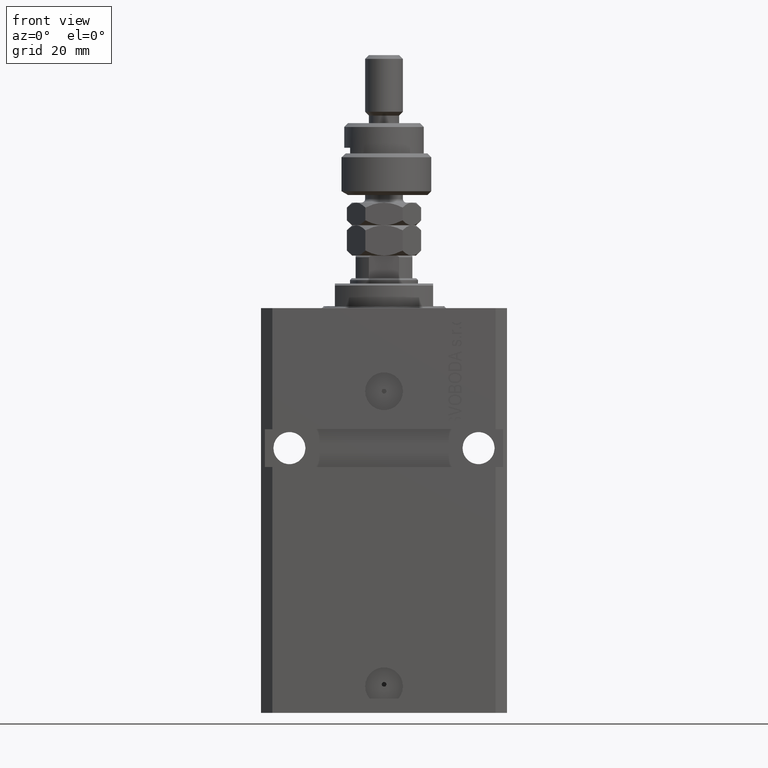
[diagram: clean part render]
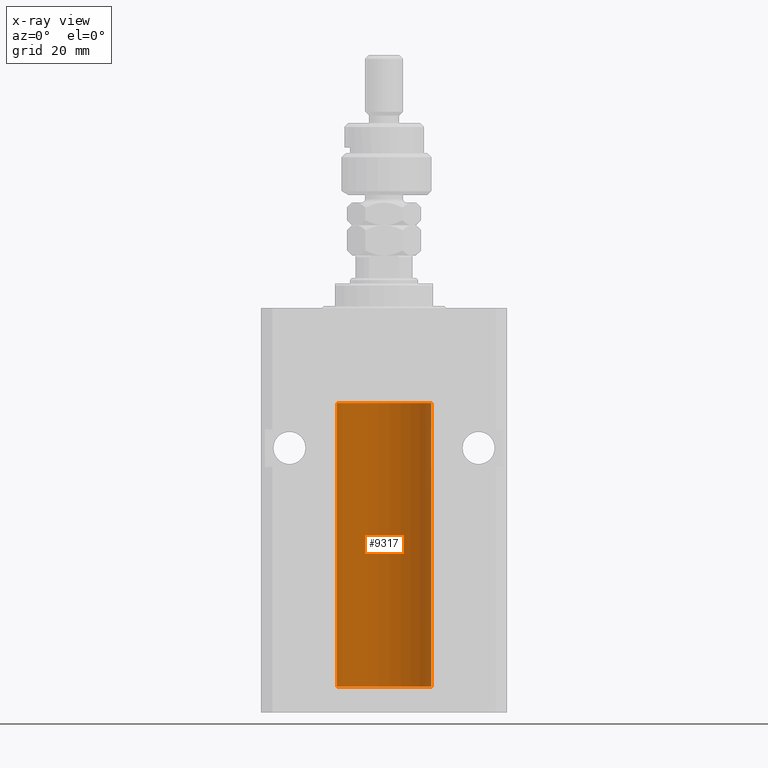
[diagram: x-ray — body ghosted, one internal face saturated and labeled with its STEP entity id]
A machine part, front view, then the same camera in x-ray: the body is ghosted and one INTERNAL B-rep face — a face not visible from any outside direction — is saturated and labeled: STEP entity #9317.
In plain terms, the highlighted cylindrical surface (partial cylindrical patch) has radius 12.5 mm, axis along (0, 0, 1).
Its self-contained STEP definition (entity closure, byte-faithful):
#134 = CARTESIAN_POINT ( 'NONE',  ( -12.50000000000000000, 1.530808498934191521E-15, -25.10000000000000142 ) ) ;
#529 = CARTESIAN_POINT ( 'NONE',  ( 0.000000000000000000, 0.000000000000000000, -100.0999999999999943 ) ) ;
#779 = CARTESIAN_POINT ( 'NONE',  ( -12.48809959379011403, 0.5462151254764922026, -95.31461370481613926 ) ) ;
#1040 = CARTESIAN_POINT ( 'NONE',  ( -12.49915784441387068, 0.1636601911727894876, -94.39126818989429069 ) ) ;
#1255 = DIRECTION ( 'NONE',  ( -0.000000000000000000, -0.000000000000000000, 1.000000000000000000 ) ) ;
#1285 = CARTESIAN_POINT ( 'NONE',  ( -12.50000000000000000, 0.08260426088727994276, -94.37499999999998579 ) ) ;
#1312 = FACE_OUTER_BOUND ( 'NONE', #39441, .T. ) ;
#2621 = EDGE_CURVE ( 'NONE', #24542, #5418, #37139, .T. ) ;
#3089 = CARTESIAN_POINT ( 'NONE',  ( 12.50000000000000000, 0.000000000000000000, -100.0999999999999943 ) ) ;
#4435 = EDGE_CURVE ( 'NONE', #40018, #12628, #37053, .T. ) ;
#4782 = EDGE_CURVE ( 'NONE', #37730, #7130, #20469, .T. ) ;
#4825 = CARTESIAN_POINT ( 'NONE',  ( -12.48436813453758631, 0.6249418250771134886, -94.83668996798924411 ) ) ;
#4858 = DIRECTION ( 'NONE',  ( -0.000000000000000000, -0.000000000000000000, 1.000000000000000000 ) ) ;
#5082 = CARTESIAN_POINT ( 'NONE',  ( -12.48810268015257741, 0.5573155909661239304, -94.67347410093871929 ) ) ;
#5418 = VERTEX_POINT ( 'NONE', #134 ) ;
#7130 = VERTEX_POINT ( 'NONE', #30245 ) ;
#8431 = CARTESIAN_POINT ( 'NONE',  ( -12.50000000000000000, 1.530808498934191521E-15, -100.0999999999999943 ) ) ;
#8609 = CARTESIAN_POINT ( 'NONE',  ( -12.50000000000017941, 3.883381774819353300E-13, -95.62500000000359535 ) ) ;
#9153 = DIRECTION ( 'NONE',  ( 1.000000000000000000, 0.000000000000000000, 0.000000000000000000 ) ) ;
#9317 = ADVANCED_FACE ( 'NONE', ( #1312 ), #47535, .F. ) ;
#10835 = ORIENTED_EDGE ( 'NONE', *, *, #4782, .T. ) ;
#12628 = VERTEX_POINT ( 'NONE', #20478 ) ;
#12666 = CARTESIAN_POINT ( 'NONE',  ( -12.49422197749723829, 0.3843754434364257122, -94.50047099568094211 ) ) ;
#16283 = ORIENTED_EDGE ( 'NONE', *, *, #45498, .F. ) ;
#16971 = DIRECTION ( 'NONE',  ( 1.000000000000000000, 0.000000000000000000, 0.000000000000000000 ) ) ;
#18368 = EDGE_CURVE ( 'NONE', #24542, #12628, #36427, .T. ) ;
#18625 = VECTOR ( 'NONE', #1255, 1000.000000000000000 ) ;
#18832 = ORIENTED_EDGE ( 'NONE', *, *, #30657, .T. ) ;
#19343 = AXIS2_PLACEMENT_3D ( 'NONE', #529, #49815, #34897 ) ;
#19501 = CARTESIAN_POINT ( 'NONE',  ( -12.49999999999999112, 0.1631761135151224562, -95.62499999999980105 ) ) ;
#20029 = VECTOR ( 'NONE', #32845, 1000.000000000000000 ) ;
#20469 = LINE ( 'NONE', #23990, #18625 ) ;
#20478 = CARTESIAN_POINT ( 'NONE',  ( -12.50000000000017941, 3.883381774819353300E-13, -95.62500000000359535 ) ) ;
#20771 = CARTESIAN_POINT ( 'NONE',  ( 0.000000000000000000, 0.000000000000000000, -100.0999999999999943 ) ) ;
#20921 = ORIENTED_EDGE ( 'NONE', *, *, #4435, .F. ) ;
#23769 = CARTESIAN_POINT ( 'NONE',  ( -12.49625855304194033, 0.3150454781037993479, -94.45402800297488000 ) ) ;
#23990 = CARTESIAN_POINT ( 'NONE',  ( 12.50000000000000000, 0.000000000000000000, -100.0999999999999943 ) ) ;
#24542 = VERTEX_POINT ( 'NONE', #45717 ) ;
#24769 = AXIS2_PLACEMENT_3D ( 'NONE', #31365, #24776, #16971 ) ;
#24776 = DIRECTION ( 'NONE',  ( 0.000000000000000000, 0.000000000000000000, 1.000000000000000000 ) ) ;
#25914 = DIRECTION ( 'NONE',  ( -0.000000000000000000, -0.000000000000000000, 1.000000000000000000 ) ) ;
#27405 = CIRCLE ( 'NONE', #19343, 12.50000000000000000 ) ;
#28736 = ORIENTED_EDGE ( 'NONE', *, *, #18368, .T. ) ;
#30245 = CARTESIAN_POINT ( 'NONE',  ( 12.50000000000000000, 0.000000000000000000, -25.10000000000000142 ) ) ;
#30657 = EDGE_CURVE ( 'NONE', #7130, #5418, #39270, .T. ) ;
#31365 = CARTESIAN_POINT ( 'NONE',  ( 0.000000000000000000, 0.000000000000000000, -25.10000000000000142 ) ) ;
#32845 = DIRECTION ( 'NONE',  ( -0.000000000000000000, -0.000000000000000000, 1.000000000000000000 ) ) ;
#33500 = CARTESIAN_POINT ( 'NONE',  ( -12.50000000000000000, 1.530808498934191521E-15, -100.0999999999999943 ) ) ;
#34897 = DIRECTION ( 'NONE',  ( 1.000000000000000000, 0.000000000000000000, 0.000000000000000000 ) ) ;
#36364 = AXIS2_PLACEMENT_3D ( 'NONE', #20771, #4858, #9153 ) ;
#36427 = B_SPLINE_CURVE_WITH_KNOTS ( 'NONE', 3,
 ( #43218, #1285, #1040, #23769, #12666, #5082, #4825, #39192, #39700, #779, #47255, #47000, #19501, #8609 ),
 .UNSPECIFIED., .F., .F.,
 ( 4, 2, 2, 2, 2, 2, 4 ),
 ( 3.486178718436696769E-18, 0.0002442924852390829216, 0.0004885849704781623738, 0.0009771699409563507684, 0.001221462426195465403, 0.001465754911434580254, 0.001954339881912780900 ),
 .UNSPECIFIED. ) ;
#37053 = LINE ( 'NONE', #33500, #37160 ) ;
#37139 = LINE ( 'NONE', #44950, #20029 ) ;
#37160 = VECTOR ( 'NONE', #25914, 1000.000000000000000 ) ;
#37730 = VERTEX_POINT ( 'NONE', #3089 ) ;
#39141 = ORIENTED_EDGE ( 'NONE', *, *, #2621, .F. ) ;
#39192 = CARTESIAN_POINT ( 'NONE',  ( -12.48436376893640620, 0.6250290278979871994, -95.08132082824478459 ) ) ;
#39270 = CIRCLE ( 'NONE', #24769, 12.50000000000000000 ) ;
#39441 = EDGE_LOOP ( 'NONE', ( #20921, #16283, #10835, #18832, #39141, #28736 ) ) ;
#39700 = CARTESIAN_POINT ( 'NONE',  ( -12.48520330846397997, 0.6088355886774070580, -95.16325431852561678 ) ) ;
#40018 = VERTEX_POINT ( 'NONE', #8431 ) ;
#43218 = CARTESIAN_POINT ( 'NONE',  ( -12.50000000000000000, -1.522152011595579853E-14, -94.37500000000000000 ) ) ;
#44950 = CARTESIAN_POINT ( 'NONE',  ( -12.50000000000000000, 1.530808498934191521E-15, -100.0999999999999943 ) ) ;
#45498 = EDGE_CURVE ( 'NONE', #37730, #40018, #27405, .T. ) ;
#45717 = CARTESIAN_POINT ( 'NONE',  ( -12.50000000000000000, -1.522152011595579853E-14, -94.37500000000000000 ) ) ;
#47000 = CARTESIAN_POINT ( 'NONE',  ( -12.49631005746706514, 0.3253680783018457756, -95.55856740465388555 ) ) ;
#47255 = CARTESIAN_POINT ( 'NONE',  ( -12.49011732893843529, 0.5003763274120199833, -95.38348111289285214 ) ) ;
#47535 = CYLINDRICAL_SURFACE ( 'NONE', #36364, 12.50000000000000000 ) ;
#49815 = DIRECTION ( 'NONE',  ( 0.000000000000000000, 0.000000000000000000, 1.000000000000000000 ) ) ;